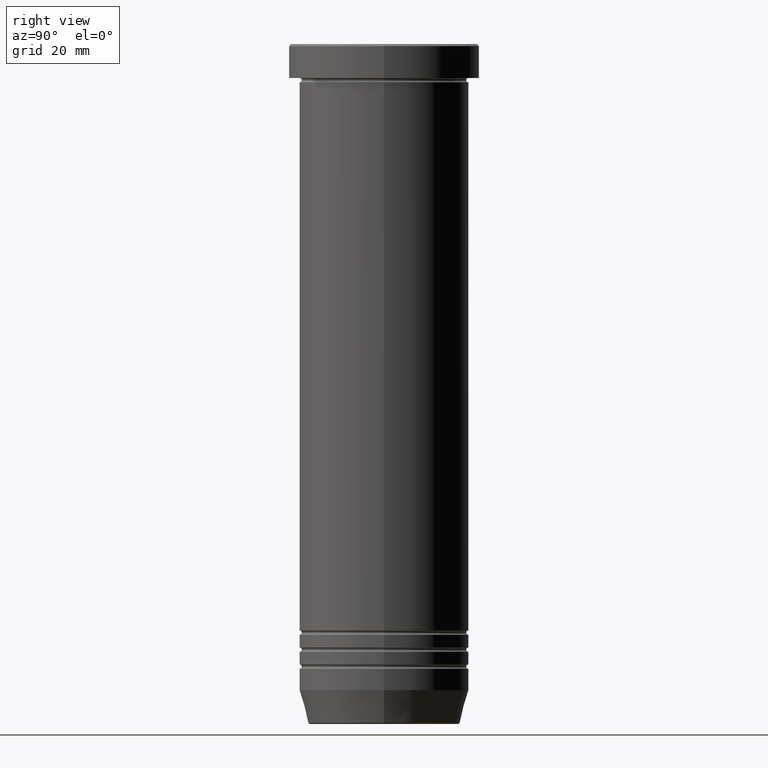
[diagram: clean part render]
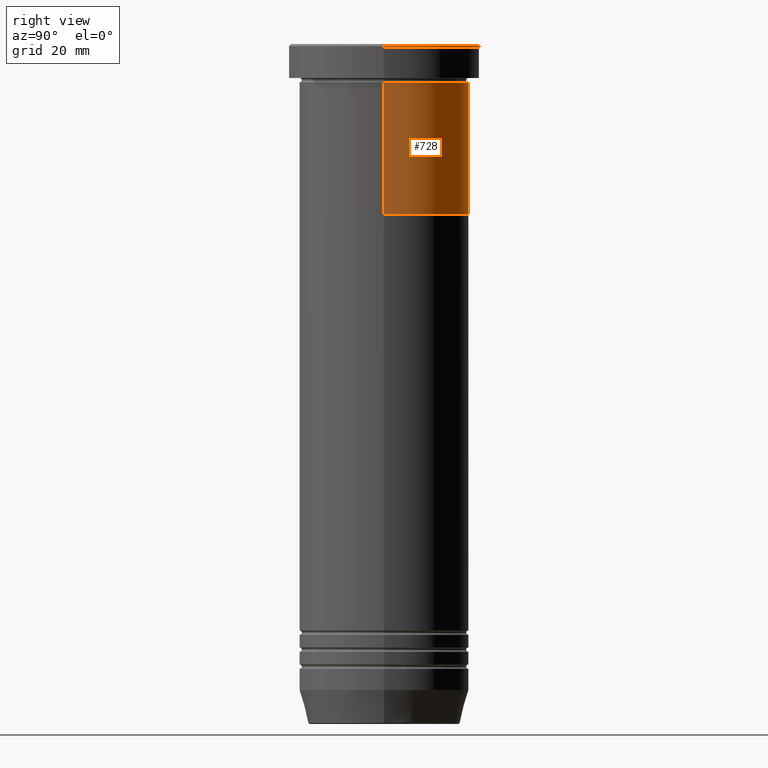
[diagram: same view with one face highlighted and labeled with its STEP entity id]
A machine part, right view. The second image highlights one B-rep face of the part: STEP entity #728.
In plain terms, the highlighted cylindrical surface (partial cylindrical patch) has radius 20 mm, axis along (-0, -0, 1).
Its self-contained STEP definition (entity closure, byte-faithful):
#50 = LINE ( 'NONE', #367, #289 ) ;
#78 = CYLINDRICAL_SURFACE ( 'NONE', #1032, 20.00000000000000000 ) ;
#87 = EDGE_CURVE ( 'NONE', #916, #288, #161, .T. ) ;
#161 = CIRCLE ( 'NONE', #664, 20.00000000000000000 ) ;
#163 = AXIS2_PLACEMENT_3D ( 'NONE', #239, #164, #823 ) ;
#164 = DIRECTION ( 'NONE',  ( -0.000000000000000000, -0.000000000000000000, 1.000000000000000000 ) ) ;
#219 = VERTEX_POINT ( 'NONE', #316 ) ;
#229 = EDGE_CURVE ( 'NONE', #388, #288, #725, .T. ) ;
#239 = CARTESIAN_POINT ( 'NONE',  ( 0.000000000000000000, 0.000000000000000000, -40.00000000000000000 ) ) ;
#259 = DIRECTION ( 'NONE',  ( -0.000000000000000000, -0.000000000000000000, 1.000000000000000000 ) ) ;
#262 = ORIENTED_EDGE ( 'NONE', *, *, #872, .T. ) ;
#288 = VERTEX_POINT ( 'NONE', #1013 ) ;
#289 = VECTOR ( 'NONE', #259, 1000.000000000000000 ) ;
#316 = CARTESIAN_POINT ( 'NONE',  ( 20.00000000000000000, 0.000000000000000000, -40.00000000000000000 ) ) ;
#367 = CARTESIAN_POINT ( 'NONE',  ( 20.00000000000000000, 0.000000000000000000, 0.000000000000000000 ) ) ;
#382 = CARTESIAN_POINT ( 'NONE',  ( 0.000000000000000000, 0.000000000000000000, -9.000000000000001776 ) ) ;
#388 = VERTEX_POINT ( 'NONE', #844 ) ;
#401 = CARTESIAN_POINT ( 'NONE',  ( 0.000000000000000000, 0.000000000000000000, 0.000000000000000000 ) ) ;
#462 = DIRECTION ( 'NONE',  ( 1.000000000000000000, 0.000000000000000000, 0.000000000000000000 ) ) ;
#489 = DIRECTION ( 'NONE',  ( 1.000000000000000000, 0.000000000000000000, 0.000000000000000000 ) ) ;
#501 = EDGE_LOOP ( 'NONE', ( #262, #877, #890, #674 ) ) ;
#548 = CARTESIAN_POINT ( 'NONE',  ( 20.00000000000000000, 0.000000000000000000, -9.000000000000001776 ) ) ;
#573 = FACE_OUTER_BOUND ( 'NONE', #501, .T. ) ;
#639 = CIRCLE ( 'NONE', #163, 20.00000000000000000 ) ;
#654 = CARTESIAN_POINT ( 'NONE',  ( -20.00000000000000000, 2.449293598294706513E-15, 0.000000000000000000 ) ) ;
#661 = DIRECTION ( 'NONE',  ( -0.000000000000000000, -0.000000000000000000, 1.000000000000000000 ) ) ;
#664 = AXIS2_PLACEMENT_3D ( 'NONE', #382, #1050, #462 ) ;
#674 = ORIENTED_EDGE ( 'NONE', *, *, #1028, .F. ) ;
#725 = LINE ( 'NONE', #654, #828 ) ;
#728 = ADVANCED_FACE ( 'NONE', ( #573 ), #78, .T. ) ;
#823 = DIRECTION ( 'NONE',  ( 1.000000000000000000, 0.000000000000000000, 0.000000000000000000 ) ) ;
#828 = VECTOR ( 'NONE', #902, 1000.000000000000000 ) ;
#844 = CARTESIAN_POINT ( 'NONE',  ( -20.00000000000000000, 2.449293598294706513E-15, -40.00000000000000000 ) ) ;
#872 = EDGE_CURVE ( 'NONE', #219, #388, #639, .T. ) ;
#877 = ORIENTED_EDGE ( 'NONE', *, *, #229, .T. ) ;
#890 = ORIENTED_EDGE ( 'NONE', *, *, #87, .F. ) ;
#902 = DIRECTION ( 'NONE',  ( -0.000000000000000000, -0.000000000000000000, 1.000000000000000000 ) ) ;
#916 = VERTEX_POINT ( 'NONE', #548 ) ;
#1013 = CARTESIAN_POINT ( 'NONE',  ( -20.00000000000000000, 2.449293598294706513E-15, -9.000000000000001776 ) ) ;
#1028 = EDGE_CURVE ( 'NONE', #219, #916, #50, .T. ) ;
#1032 = AXIS2_PLACEMENT_3D ( 'NONE', #401, #661, #489 ) ;
#1050 = DIRECTION ( 'NONE',  ( -0.000000000000000000, -0.000000000000000000, 1.000000000000000000 ) ) ;